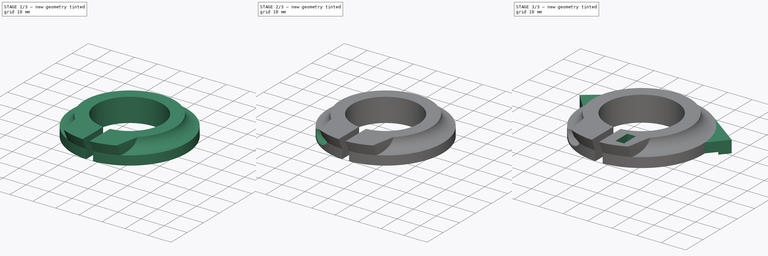
[diagram: build sequence overview — one tinted view per stage of 3, left to right]
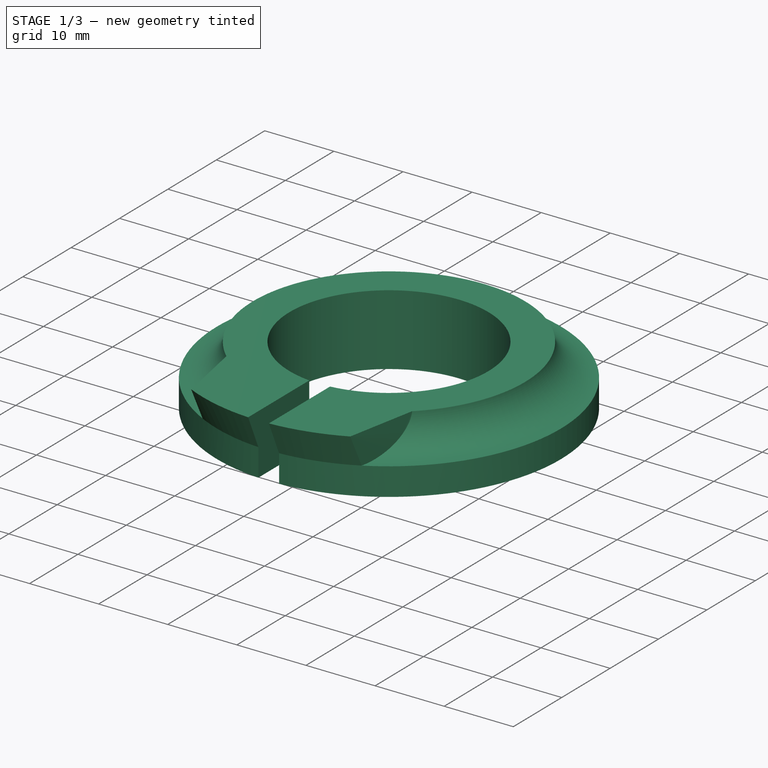
[diagram: stage 1 of 3 — iso view after this stage's code; geometry added in this stage tinted green]
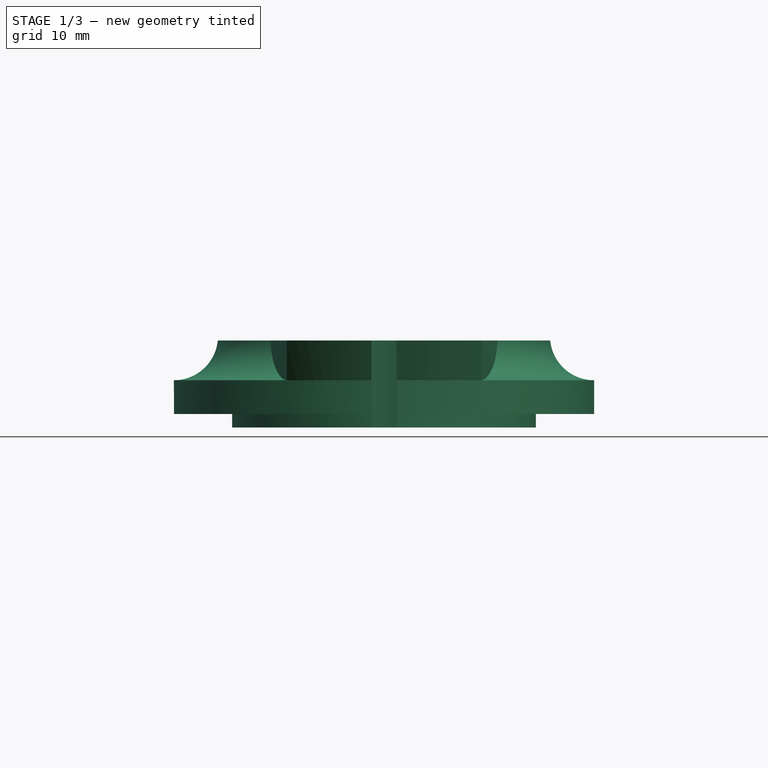
[diagram: stage 1 of 3 — front view after this stage's code; geometry added in this stage tinted green]
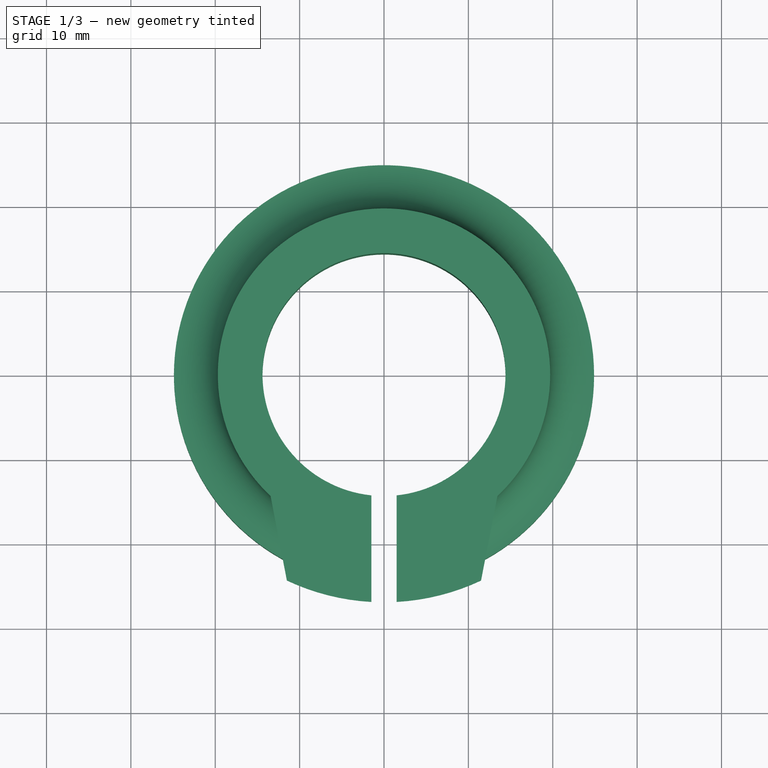
[diagram: stage 1 of 3 — top view after this stage's code; geometry added in this stage tinted green]
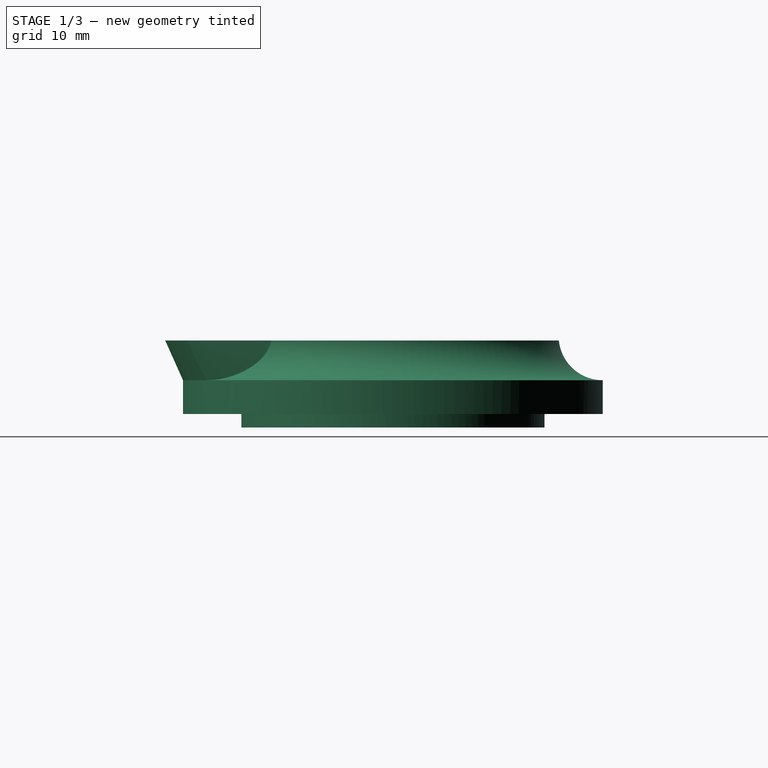
[diagram: stage 1 of 3 — right view after this stage's code; geometry added in this stage tinted green]
FCSTD DOCUMENT  (FreeCAD 0.21Rpre_29277.fc34 (Git))
Label: canyon
License: All rights reserved
LicenseURL: http://en.wikipedia.org/wiki/All_rights_reserved
objects: Sketcher::SketchObject×9, PartDesign::Pocket×4, PartDesign::Pad×2, PartDesign::Revolution×1, PartDesign::AdditiveLoft×1, PartDesign::Body×1
note: 26 computed .brp shape members not serialized (recipe doc carries the construction recipe); baked Part::Feature solids carry a one-line shape summary decoded from their .brp

FEATURE [Sketcher::SketchObject] Sketch
  FullyConstrained = true
  MapMode = 5
  Placement = pos=(0,0,0) rot=(1,0,0;1.5708rad)
  Support = -> [XZ_Plane]
  sketch-geometry (8):
    g0: GeomPoint X=14.4 Y=0 Z=0
    g1: LineSegment StartX=14.4 StartY=0 StartZ=0 EndX=14.4 EndY=10.3 EndZ=0
    g2: LineSegment StartX=14.4 StartY=10.3 StartZ=0 EndX=19.7 EndY=10.3 EndZ=0
    g3: LineSegment StartX=14.4 StartY=0 StartZ=0 EndX=18 EndY=0 EndZ=0
    g4: LineSegment StartX=18 StartY=0 StartZ=0 EndX=18 EndY=1.6 EndZ=0
    g5: LineSegment StartX=18 StartY=1.6 StartZ=0 EndX=24.9 EndY=1.6 EndZ=0
    g6: LineSegment StartX=24.9 StartY=1.6 StartZ=0 EndX=24.9 EndY=5.6 EndZ=0
    g7: ArcOfCircle CenterX=24.9 CenterY=10.8266 CenterZ=0 NormalX=0 NormalY=0 NormalZ=1 AngleXU=0 Radius=5.2266 StartAngle=3.24252 EndAngle=4.71239
  constraints (23):
    c: PointOnObject(g0,g-1)
    c: DistanceX(g0) = 14.4
    c: Coincident(g1,g0)
    c: Vertical(g1)
    c: DistanceY(g1,g1) = 10.3
    c: Coincident(g2,g1)
    c: Horizontal(g2)
    c: DistanceX(g2,g2) = 5.3
    c: Coincident(g3,g1)
    c: PointOnObject(g3,g-1)
    c: DistanceX(g3,g3) = 3.6
    c: Coincident(g4,g3)
    c: Vertical(g4)
    c: DistanceY(g4,g4) = 1.6
    c: Coincident(g5,g4)
    c: Horizontal(g5)
    c: DistanceX(g5,g5) = 6.9
    c: Coincident(g6,g5)
    c: Vertical(g6)
    c: DistanceY(g6,g6) = 4
    c: Coincident(g7,g6)
    c: Coincident(g7,g2)
    c: DistanceX(g7) = 24.9
FEATURE [PartDesign::Revolution] Revolution  label="gyuru-test"
  Angle = 360
  Axis = (0,-2e-16,1)
  Base = (0,0,0)
  Placement = pos=(0,0,0) rot=(1,0,0;1.5708rad)
  Profile = -> Sketch
  ReferenceAxis = -> Sketch [V_Axis]
  Reversed = true
FEATURE [Sketcher::SketchObject] Sketch001  label="felso"
  AttachmentOffset = pos=(0,0,10.3) rot=(0,0,1;0rad)
  FullyConstrained = true
  MapMode = 5
  Placement = pos=(0,0,10.3) rot=(0,0,1;0rad)
  Support = -> [XY_Plane]
  sketch-geometry (4):
    g0: ArcOfCircle CenterX=0 CenterY=0 CenterZ=0 NormalX=0 NormalY=0 NormalZ=1 AngleXU=0 Radius=27 StartAngle=4.27196 EndAngle=5.15237
    g1: LineSegment StartX=-13.4436 StartY=-14.4 StartZ=0 EndX=13.4436 EndY=-14.4 EndZ=0
    g2: LineSegment StartX=-11.5108 StartY=-24.4234 StartZ=0 EndX=-13.4436 EndY=-14.4 EndZ=0
    g3: LineSegment StartX=13.4436 StartY=-14.4 StartZ=0 EndX=11.5 EndY=-24.4285 EndZ=0
  constraints (12):
    c: Coincident(g0,g-1)
    c: Radius(g0) = 27
    c: Horizontal(g1)
    c: DistanceX(g0) = 11.5
    c: Coincident(g2,g0)
    c: Coincident(g2,g1)
    c: Coincident(g3,g1)
    c: Coincident(g3,g0)
    c: DistanceX(g1) = -13.4436
    c: DistanceY(g1) = -14.4
    c: DistanceX(g0) = -11.5108
    c: DistanceX(g1) = 13.4436
FEATURE [Sketcher::SketchObject] Sketch002  label="also"
  AttachmentOffset = pos=(0,0,5.6) rot=(0,0,1;0rad)
  FullyConstrained = true
  MapMode = 5
  Placement = pos=(0,0,5.6) rot=(0,0,1;0rad)
  Support = -> [XY_Plane]
  sketch-geometry (4):
    g0: ArcOfCircle CenterX=0 CenterY=0 CenterZ=0 NormalX=0 NormalY=0 NormalZ=1 AngleXU=0 Radius=24.9 StartAngle=4.23182 EndAngle=5.19247
    g1: LineSegment StartX=-13.4436 StartY=-14.4 StartZ=0 EndX=13.4436 EndY=-14.4 EndZ=0
    g2: LineSegment StartX=-11.5108 StartY=-22.0797 StartZ=0 EndX=-13.4436 EndY=-14.4 EndZ=0
    g3: LineSegment StartX=13.4436 StartY=-14.4 StartZ=0 EndX=11.5 EndY=-22.0853 EndZ=0
  constraints (12):
    c: Coincident(g0,g-1)
    c: Radius(g0) = 24.9
    c: Horizontal(g1)
    c: DistanceX(g0) = 11.5
    c: Coincident(g2,g0)
    c: Coincident(g2,g1)
    c: Coincident(g3,g1)
    c: Coincident(g3,g0)
    c: DistanceX(g1) = -13.4436
    c: DistanceY(g1) = -14.4
    c: DistanceX(g0) = -11.5108
    c: DistanceX(g1) = 13.4436
FEATURE [PartDesign::AdditiveLoft] AdditiveLoft  label="csavar-tomb"
  BaseFeature = -> Revolution
  Closed = false
  Placement = pos=(0,0,0) rot=(1,0,0;1.5708rad)
  Profile = -> Sketch002
  Ruled = false
  Sections = -> [Sketch001]
FEATURE [Sketcher::SketchObject] Sketch003
  FullyConstrained = true
  MapMode = 5
  Support = -> [XY_Plane]
  sketch-geometry (4):
    g0: LineSegment StartX=-1.5 StartY=-12 StartZ=0 EndX=1.5 EndY=-12 EndZ=0
    g1: LineSegment StartX=1.5 StartY=-12 StartZ=0 EndX=1.5 EndY=-29 EndZ=0
    g2: LineSegment StartX=1.5 StartY=-29 StartZ=0 EndX=-1.5 EndY=-29 EndZ=0
    g3: LineSegment StartX=-1.5 StartY=-29 StartZ=0 EndX=-1.5 EndY=-12 EndZ=0
  constraints (12):
    c: Coincident(g0,g1)
    c: Coincident(g1,g2)
    c: Coincident(g2,g3)
    c: Coincident(g3,g0)
    c: Horizontal(g0)
    c: Horizontal(g2)
    c: Vertical(g1)
    c: Vertical(g3)
    c: DistanceX(g0) = -1.5
    c: DistanceY(g0) = -12
    c: DistanceX(g1) = 1.5
    c: DistanceY(g1) = -29
FEATURE [PartDesign::Pocket] Pocket  label="kozepso-kivagas"
  BaseFeature = -> AdditiveLoft
  Direction = (0,0,-1)
  Length = 11
  Length2 = 5
  Placement = pos=(0,0,0) rot=(1,0,0;1.5708rad)
  Profile = -> Sketch003
  ReferenceAxis = -> Sketch003 [N_Axis]
  Reversed = true
  Type = 0
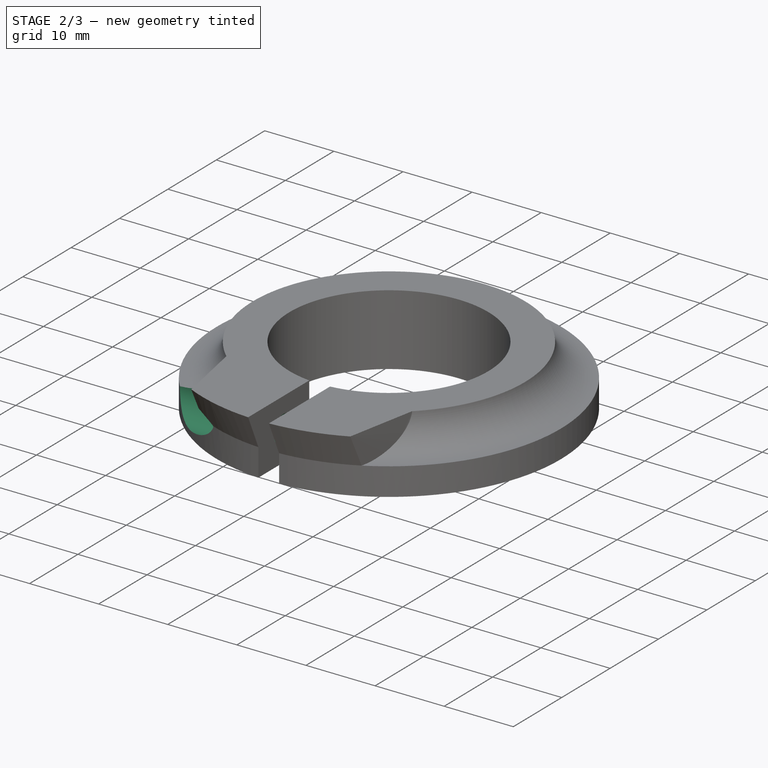
[diagram: stage 2 of 3 — iso view after this stage's code; geometry added in this stage tinted green]
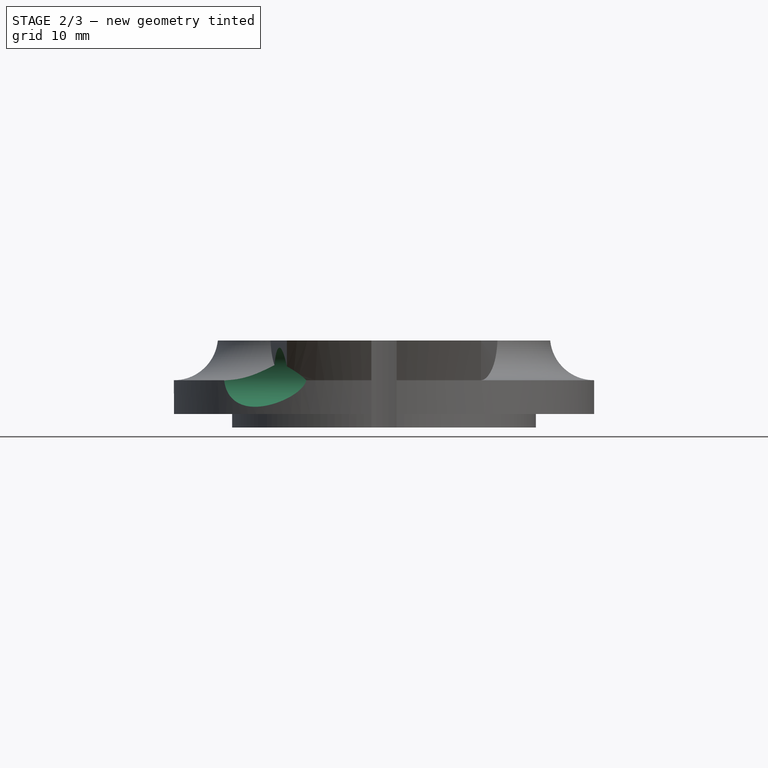
[diagram: stage 2 of 3 — front view after this stage's code; geometry added in this stage tinted green]
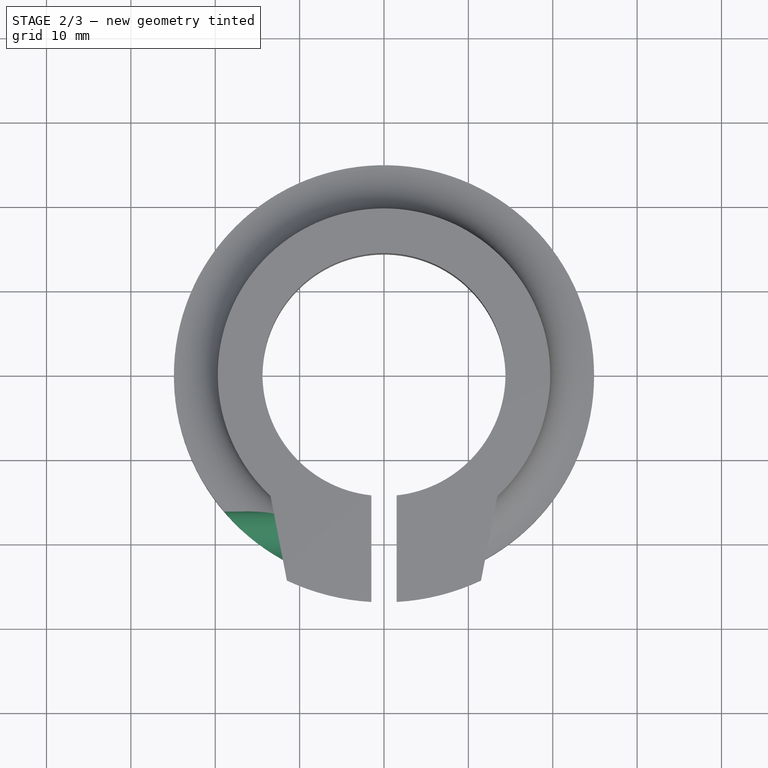
[diagram: stage 2 of 3 — top view after this stage's code; geometry added in this stage tinted green]
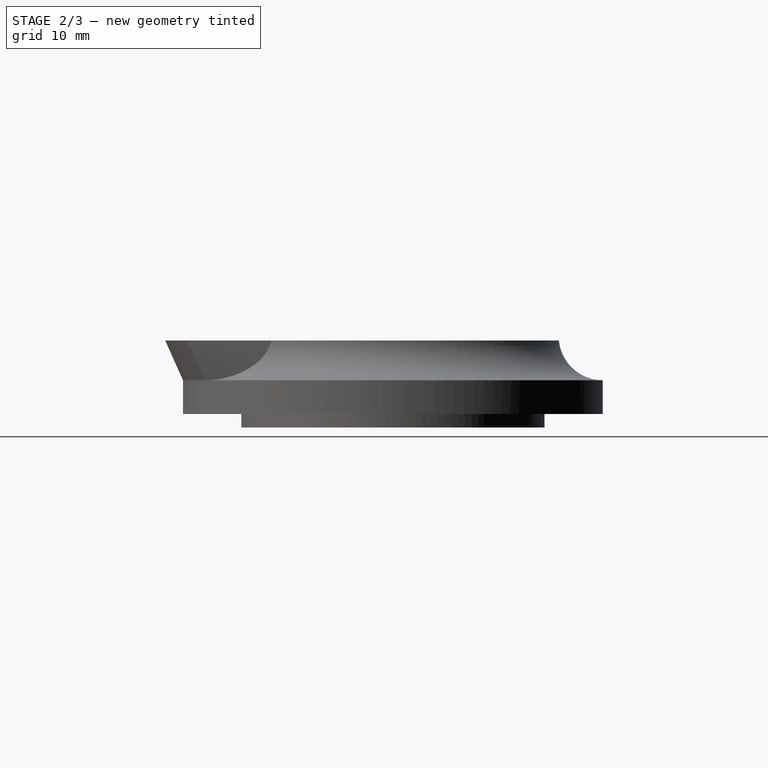
[diagram: stage 2 of 3 — right view after this stage's code; geometry added in this stage tinted green]
FEATURE [Sketcher::SketchObject] Sketch004
  AttachmentOffset = pos=(0,0,-22) rot=(0,0,1;0rad)
  FullyConstrained = true
  MapMode = 5
  Placement = pos=(-22,4.9e-15,-4.9e-15) rot=(0.57735,0.57735,0.57735;2.0944rad)
  Support = -> [YZ_Plane]
  sketch-geometry (1):
    g0: Circle CenterX=-19.65 CenterY=5.95 CenterZ=0 NormalX=0 NormalY=0 NormalZ=1 AngleXU=0 Radius=3.5
  constraints (3):
    c: DistanceX(g0) = -19.65
    c: DistanceY(g0) = 5.95
    c: Radius(g0) = 3.5
FEATURE [PartDesign::Pocket] Pocket001  label="csavarfej-kivagas"
  BaseFeature = -> Pocket
  Direction = (-1,2e-16,-3e-16)
  Length = 15
  Length2 = 5
  Placement = pos=(0,0,0) rot=(1,0,0;1.5708rad)
  Profile = -> Sketch004
  ReferenceAxis = -> Sketch004 [N_Axis]
  Reversed = true
  Type = 0
FEATURE [Sketcher::SketchObject] Sketch005
  AttachmentOffset = pos=(0,0,-7) rot=(0,0,1;0rad)
  FullyConstrained = true
  MapMode = 5
  Placement = pos=(-7,1.6e-15,-1.6e-15) rot=(0.57735,0.57735,0.57735;2.0944rad)
  Support = -> [YZ_Plane]
  sketch-geometry (1):
    g0: Circle CenterX=-19.65 CenterY=5.95 CenterZ=0 NormalX=0 NormalY=0 NormalZ=1 AngleXU=0 Radius=2
  constraints (3):
    c: DistanceX(g0) = -19.65
    c: DistanceY(g0) = 5.95
    c: Radius(g0) = 2
FEATURE [PartDesign::Pocket] Pocket002  label="csavar-menet"
  BaseFeature = -> Pocket001
  Direction = (-1,2e-16,-3e-16)
  Length = 18
  Length2 = 5
  Placement = pos=(0,0,0) rot=(1,0,0;1.5708rad)
  Profile = -> Sketch005
  ReferenceAxis = -> Sketch005 [N_Axis]
  Reversed = true
  Type = 0
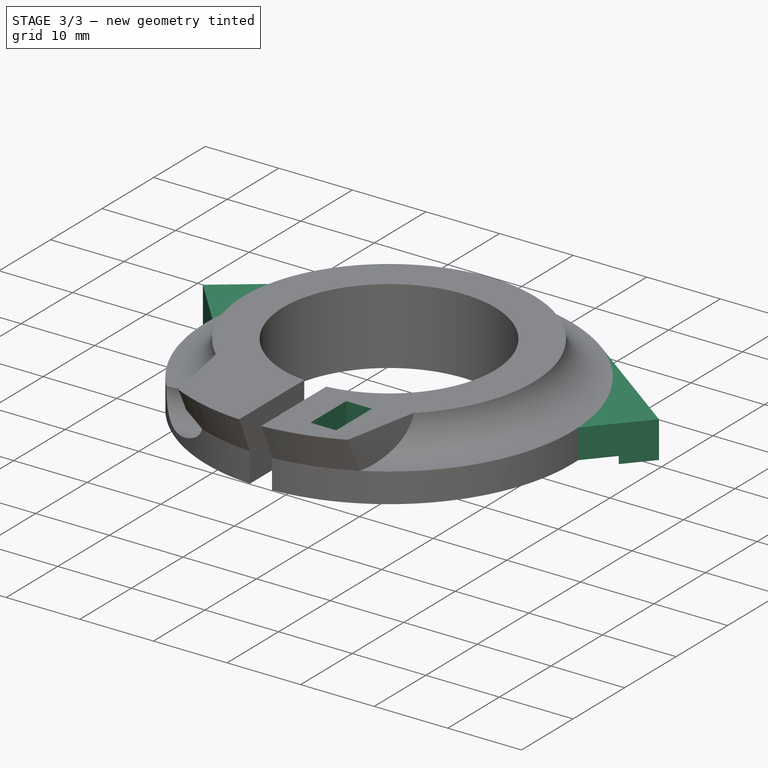
[diagram: stage 3 of 3 — iso view after this stage's code; geometry added in this stage tinted green]
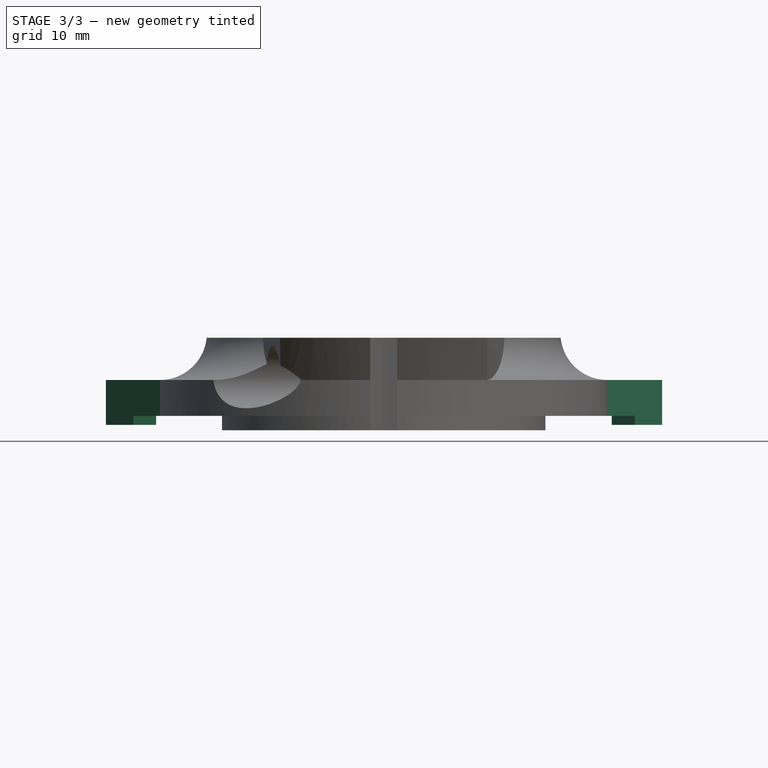
[diagram: stage 3 of 3 — front view after this stage's code; geometry added in this stage tinted green]
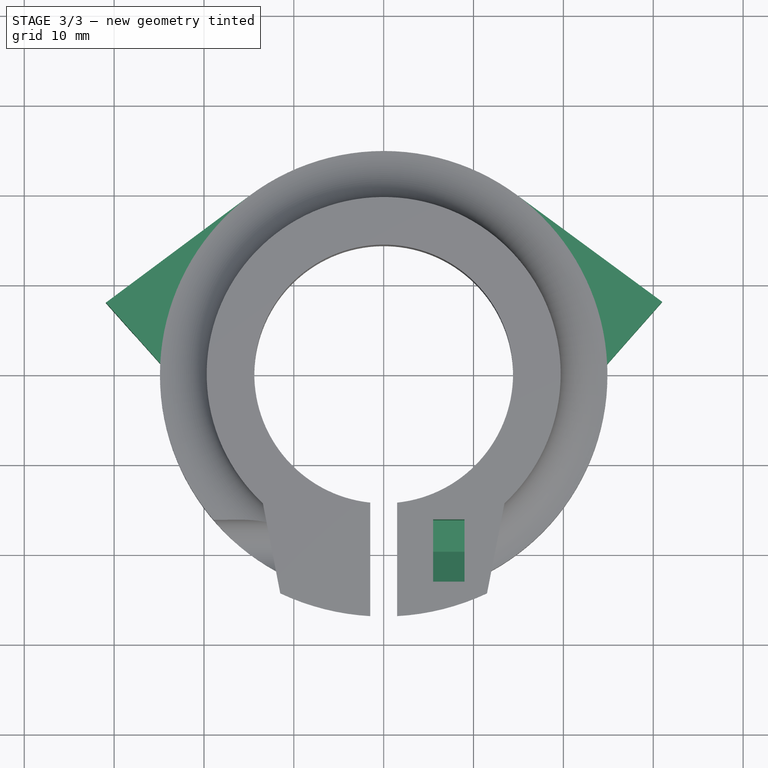
[diagram: stage 3 of 3 — top view after this stage's code; geometry added in this stage tinted green]
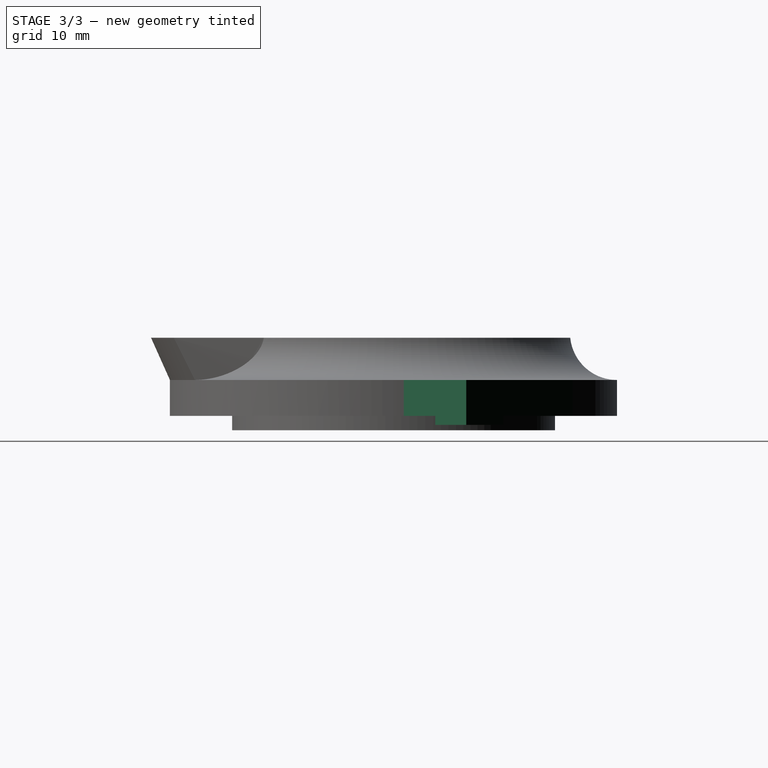
[diagram: stage 3 of 3 — right view after this stage's code; geometry added in this stage tinted green]
FEATURE [Sketcher::SketchObject] Sketch006
  AttachmentOffset = pos=(0,0,5.5) rot=(0,0,1;0rad)
  FullyConstrained = true
  MapMode = 5
  Placement = pos=(5.5,-1.2e-15,1.2e-15) rot=(0.57735,0.57735,0.57735;2.0944rad)
  Support = -> [YZ_Plane]
  sketch-geometry (7):
    g0: LineSegment StartX=-16.1859 StartY=3.95 StartZ=0 EndX=-16.1859 EndY=7.95 EndZ=0
    g1: LineSegment StartX=-23.1141 StartY=3.95 StartZ=0 EndX=-19.65 EndY=1.95 EndZ=0
    g2: LineSegment StartX=-19.65 StartY=1.95 StartZ=0 EndX=-16.1859 EndY=3.95 EndZ=0
    g3: Circle CenterX=-19.65 CenterY=5.95 CenterZ=0 NormalX=0 NormalY=0 NormalZ=1 AngleXU=0 Radius=4
    g4: LineSegment StartX=-16.1859 StartY=7.95 StartZ=0 EndX=-16.1859 EndY=15.95 EndZ=0
    g5: LineSegment StartX=-23.1141 StartY=15.95 StartZ=0 EndX=-16.1859 EndY=15.95 EndZ=0
    g6: LineSegment StartX=-23.1141 StartY=3.95 StartZ=0 EndX=-23.1141 EndY=15.95 EndZ=0
  constraints (21):
    c: Coincident(g1,g2)
    c: Coincident(g2,g0)
    c: Equal(g0,g1)
    c: Equal(g0,g2)
    c: PointOnObject(g0,g3)
    c: PointOnObject(g1,g3)
    c: PointOnObject(g1,g3)
    c: PointOnObject(g2,g3)
    c: DistanceX(g3) = -19.65
    c: DistanceY(g3) = 5.95
    c: Radius(g3) = 4
    c: Coincident(g4,g0)
    c: Vertical(g4)
    c: DistanceY(g4,g4) = 8
    c: Coincident(g5,g4)
    c: DistanceX(g0) = -16.1859
    c: DistanceX(g5) = -23.1141
    c: DistanceY(g5) = 15.95
    c: Coincident(g6,g1)
    c: Coincident(g6,g5)
    c: Vertical(g6)
FEATURE [PartDesign::Pocket] Pocket003  label="csavarfej-helye"
  BaseFeature = -> Pocket002
  Direction = (-1,2e-16,-3e-16)
  Length = 3.5
  Length2 = 5
  Placement = pos=(0,0,0) rot=(1,0,0;1.5708rad)
  Profile = -> Sketch006
  ReferenceAxis = -> Sketch006 [N_Axis]
  Reversed = true
  Type = 0
FEATURE [Sketcher::SketchObject] Sketch007
  AttachmentOffset = pos=(0,0,1.6) rot=(0,0,1;0rad)
  FullyConstrained = true
  MapMode = 5
  Placement = pos=(0,0,1.6) rot=(0,0,1;0rad)
  Support = -> [XY_Plane]
  sketch-geometry (6):
    g0: ArcOfCircle CenterX=0 CenterY=0 CenterZ=0 NormalX=0 NormalY=0 NormalZ=1 AngleXU=0 Radius=24.9 StartAngle=2.21082 EndAngle=3.09185
    g1: LineSegment StartX=14.8706 StartY=19.9719 StartZ=0 EndX=30.983 EndY=8.12331 EndZ=0
    g2: LineSegment StartX=-14.8706 StartY=19.9719 StartZ=0 EndX=-30.9122 EndY=8.02765 EndZ=0
    g3: LineSegment StartX=-30.9122 StartY=8.02765 StartZ=0 EndX=-24.8692 EndY=1.23804 EndZ=0
    g4: LineSegment StartX=30.983 StartY=8.12331 StartZ=0 EndX=24.8723 EndY=1.17481 EndZ=0
    g5: ArcOfCircle CenterX=0 CenterY=0 CenterZ=0 NormalX=0 NormalY=0 NormalZ=1 AngleXU=0 Radius=24.9 StartAngle=0.0471987 EndAngle=0.930776
  constraints (17):
    c: Coincident(g0,g-1)
    c: Radius(g0) = 24.9
    c: Angle(g2,g1) = 1.8675
    c: DistanceX(g2) = -14.8706
    c: Distance(g2) = 20
    c: Coincident(g3,g2)
    c: Angle(g3,g2) = 1.48353
    c: Distance(g1) = 20
    c: Coincident(g4,g1)
    c: Angle(g1,g4) = 1.48353
    c: Coincident(g5,g1) = 1.5708
    c: Tangent(g0,g2) = -1.5708
    c: Equal(g0,g5)
    c: Coincident(g0,g3)
    c: Coincident(g5,g4)
    c: Coincident(g0,g5)
    c: DistanceX(g1) = 14.8706
FEATURE [PartDesign::Pad] Pad  label="fulek"
  BaseFeature = -> Pocket003
  Direction = (0,0,1)
  Length = 4
  Length2 = 10
  Placement = pos=(0,0,0) rot=(1,0,0;1.5708rad)
  Profile = -> Sketch007
  ReferenceAxis = -> Sketch007 [N_Axis]
  Type = 0
FEATURE [Sketcher::SketchObject] Sketch008
  AttachmentOffset = pos=(0,0,0.6) rot=(0,0,1;0rad)
  FullyConstrained = true
  MapMode = 5
  Placement = pos=(0,0,0.6) rot=(0,0,1;0rad)
  Support = -> [XY_Plane]
  sketch-geometry (6):
    g0: LineSegment StartX=25.3867 StartY=12.2523 StartZ=0 EndX=30.983 EndY=8.12331 EndZ=0
    g1: LineSegment StartX=-25.3274 StartY=12.1722 StartZ=0 EndX=-30.9122 EndY=8.02765 EndZ=0
    g2: LineSegment StartX=-30.9122 StartY=8.02765 StartZ=0 EndX=-27.8553 EndY=4.5821 EndZ=0
    g3: LineSegment StartX=30.983 StartY=8.12331 StartZ=0 EndX=27.9357 EndY=4.66928 EndZ=0
    g4: LineSegment StartX=25.3867 StartY=12.2523 StartZ=0 EndX=27.9357 EndY=4.66928 EndZ=0
    g5: LineSegment StartX=-27.8553 StartY=4.5821 StartZ=0 EndX=-25.3274 EndY=12.1722 EndZ=0
  constraints (18):
    c: Angle(g1,g0) = 1.8675
    c: Coincident(g2,g1)
    c: Angle(g2,g1) = 1.48353
    c: Coincident(g3,g0)
    c: Angle(g0,g3) = 1.48353
    c: Distance(g4) = 8
    c: DistanceX(g0) = 30.983
    c: DistanceY(g0) = 8.12331
    c: DistanceX(g1) = -30.9122
    c: DistanceY(g1) = 8.02765
    c: Angle(g3,g4) = 1.0472
    c: Coincident(g0,g4)
    c: Coincident(g3,g4)
    c: Distance(g5) = 8
    c: Angle(g5,g2) = 1.0472
    c: Coincident(g1,g5)
    c: Coincident(g2,g5)
    c: DistanceX(g1) = -25.3274
FEATURE [PartDesign::Pad] Pad001  label="fulek-also"
  BaseFeature = -> Pad
  Direction = (0,0,1)
  Length = 1
  Length2 = 10
  Placement = pos=(0,0,0) rot=(1,0,0;1.5708rad)
  Profile = -> Sketch008
  ReferenceAxis = -> Sketch008 [N_Axis]
  Type = 0
FEATURE [PartDesign::Body] Body
  Group = -> [Sketch,Revolution,Sketch001,Sketch002,AdditiveLoft,Sketch003,Pocket,Sketch004,Pocket001,Sketch005,Pocket002,Sketch006,Pocket003,Sketch007,Pad,Sketch008,Pad001]
  Origin = -> Origin
  Tip = -> Pad001
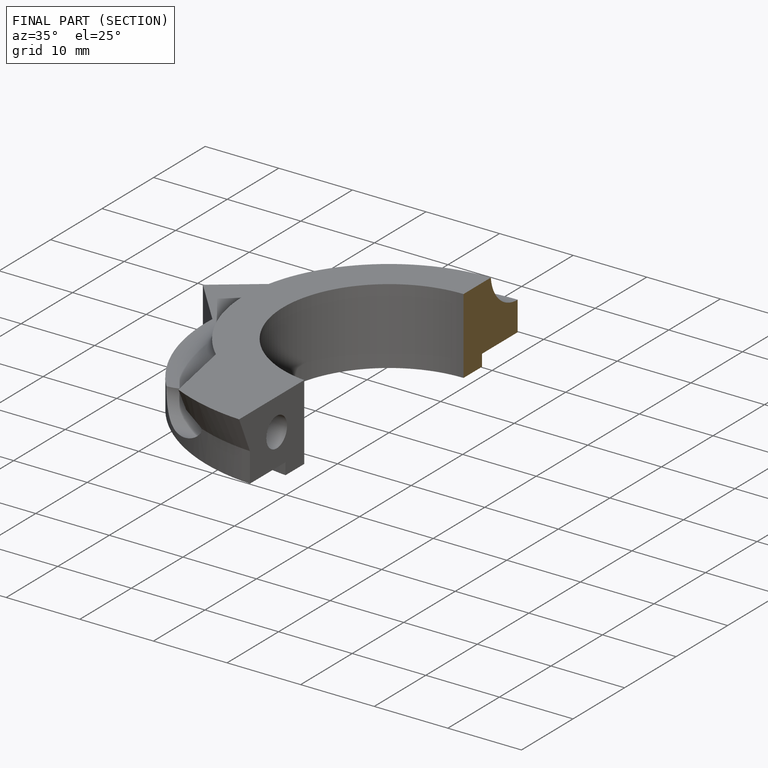
[diagram: finished part — half-section view (interior)]
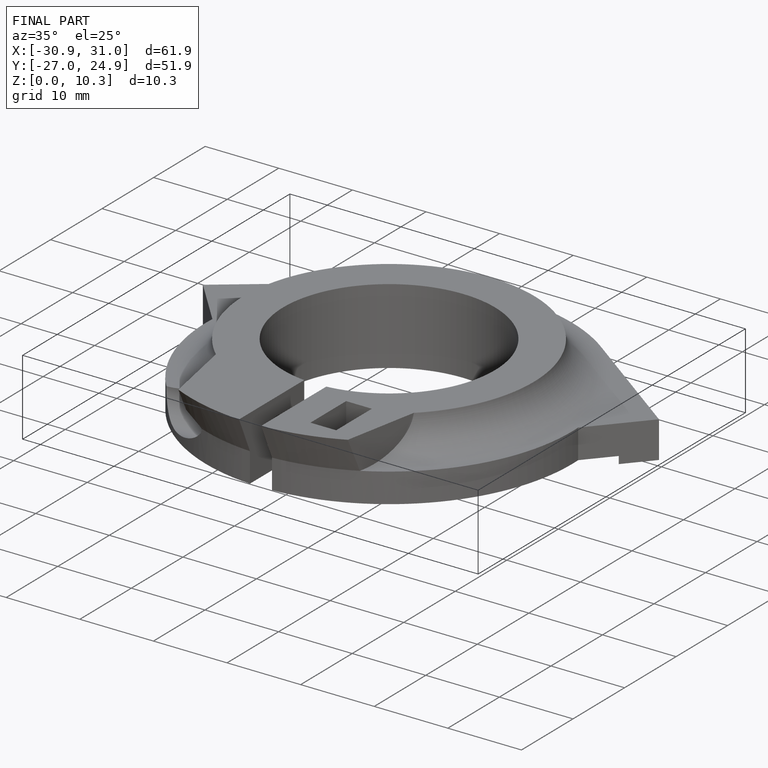
[diagram: finished part — iso view with bounding-box wireframe]
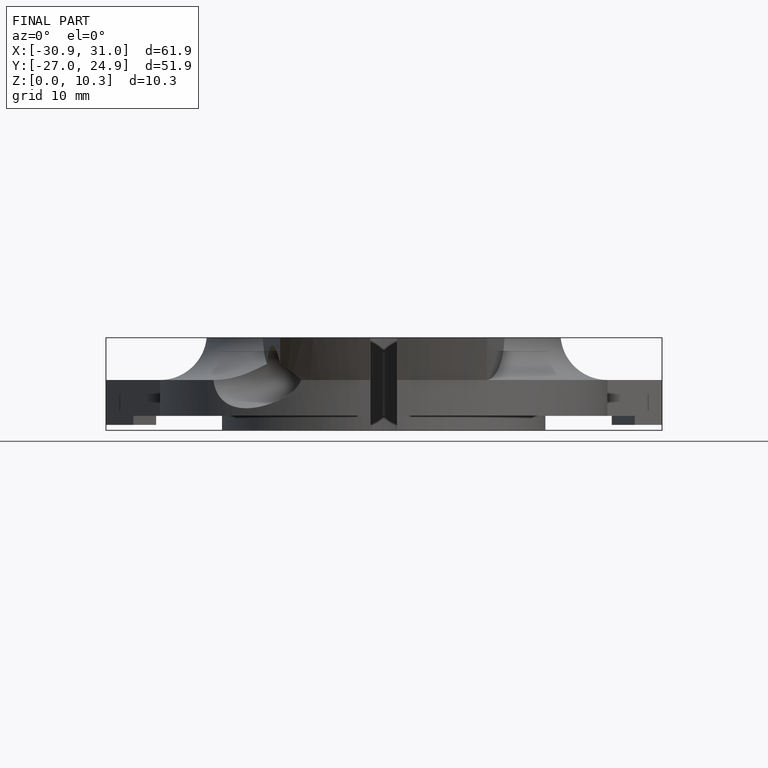
[diagram: finished part — front view with bounding-box wireframe]
